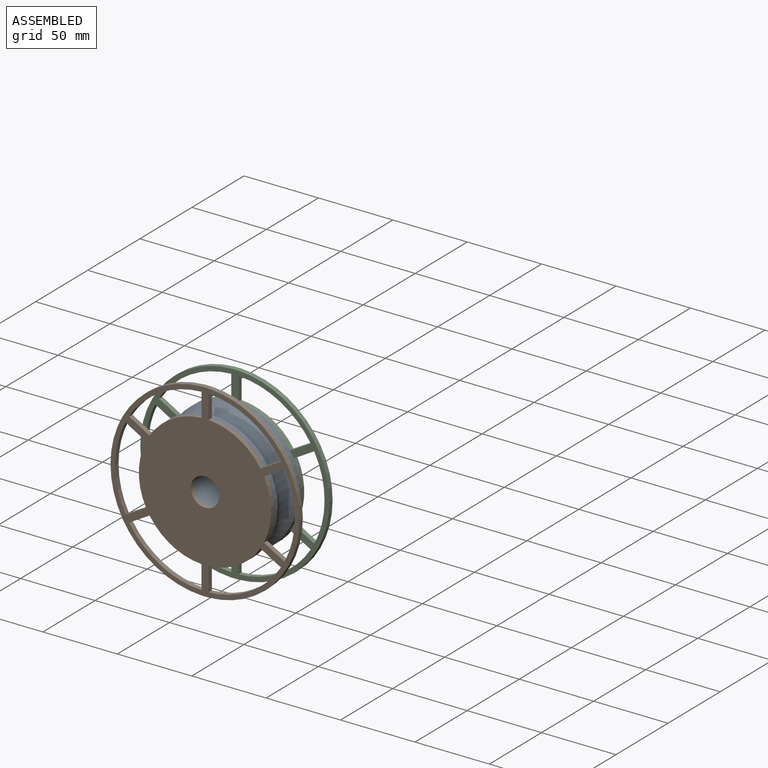
[diagram: assembled view]
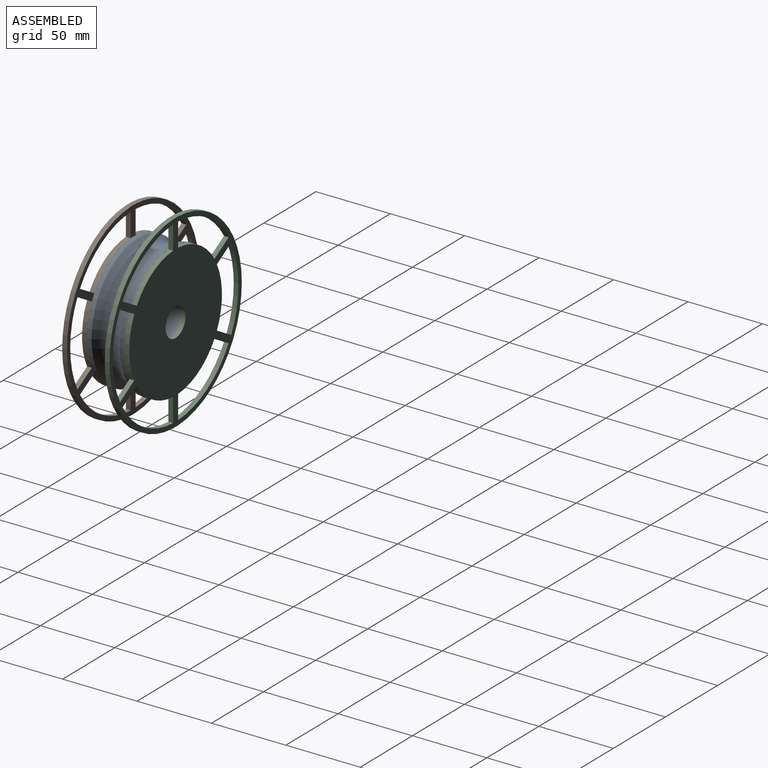
[diagram: assembled view, second angle]
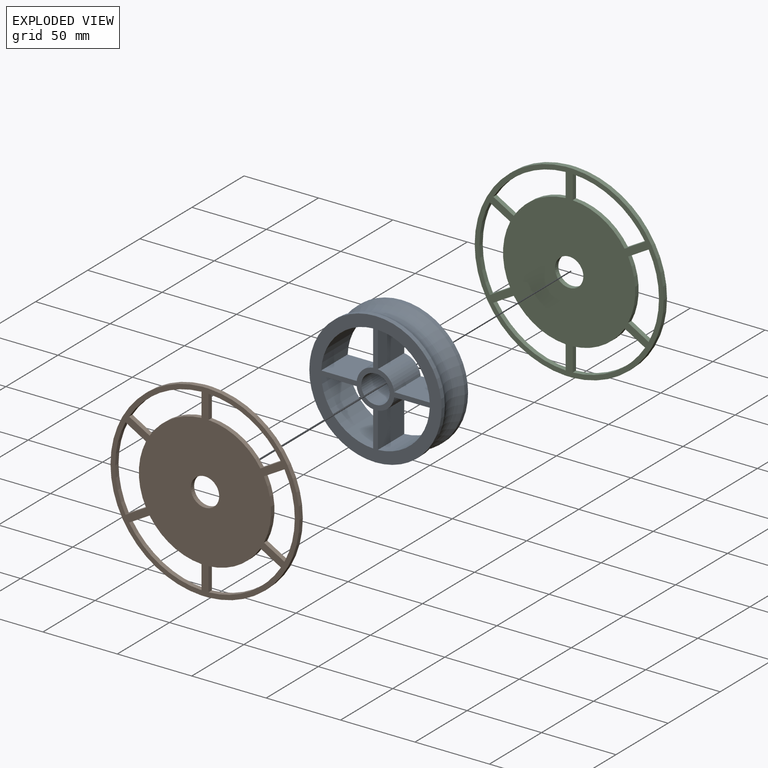
[diagram: exploded view]
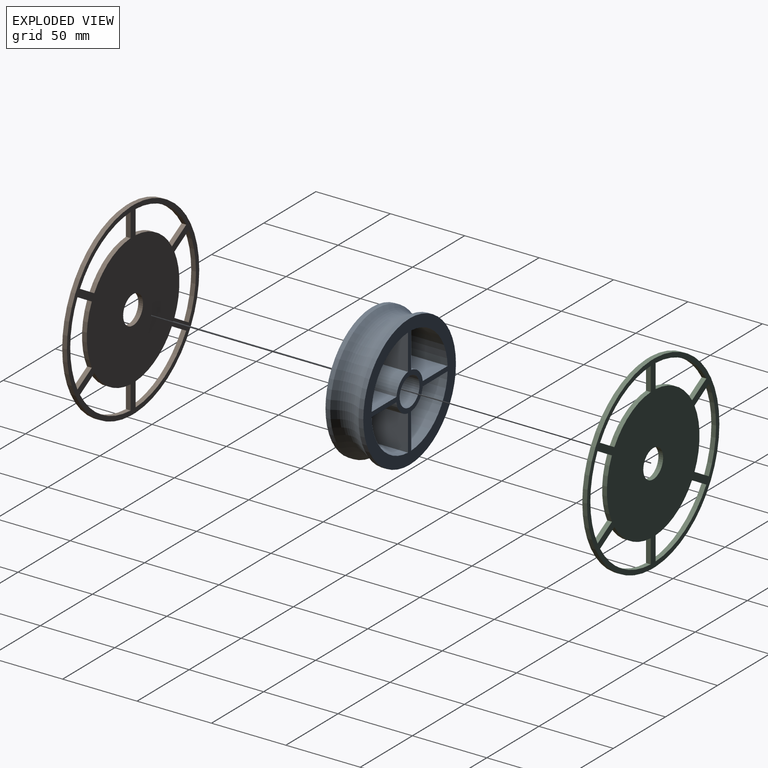
[diagram: exploded view, second angle]
ASSEMBLY  parts=3 mates=2
PART A: 24 faces, bbox 96.5x96.5x25.4 mm
  f0: plane 88.9x88.9mm, normal (0,0,1), area 2543.3mm2, adj f6,f7,f8,f9,f10,f11,f12,f13
  f1: plane 88.9x88.9mm, normal (0,0,-1), area 2543.3mm2, adj f2,f7,f8,f9,f10,f11,f12,f13
  f2: cylinder r=44.45mm len=88.9mm, axis (0,0,-1), area 886.7mm2, adj f1,f3
  f3: cone r=42.62mm half-angle=30deg, axis (0,0,-1), area 1002.8mm2, adj f2,f4
  f4: torus R=53.62mm, axis (0,0,-1), area 3466.8mm2, adj f3,f5
  f5: cone r=44.45mm half-angle=30deg, axis (0,0,1), area 1002.8mm2, adj f4,f6
  f6: cylinder r=44.45mm len=88.9mm, axis (0,0,-1), area 886.7mm2, adj f0,f5
  f7: cylinder r=36.51mm len=34.89mm, axis (0,0,1), area 1376.1mm2, adj f0,f1,f8,f10
  f8: plane 25.4x23.88mm, normal (1,0,0), area 606.5mm2, adj f0,f1,f7,f9
  f9: cylinder r=12.7mm len=25.4mm, axis (0,0,1), area 425.9mm2, adj f0,f1,f8,f10
  f10: plane 25.4x23.88mm, normal (0,1,0), area 606.5mm2, adj f0,f1,f7,f9
  f11: plane 25.4x23.88mm, normal (0,-1,0), area 606.5mm2, adj f0,f1,f12,f14
  f12: cylinder r=12.7mm len=25.4mm, axis (0,0,1), area 425.9mm2, adj f0,f1,f11,f13
  f13: plane 25.4x23.88mm, normal (1,0,0), area 606.5mm2, adj f0,f1,f12,f14
  f14: cylinder r=36.51mm len=34.89mm, axis (0,0,1), area 1376.1mm2, adj f0,f1,f11,f13
  f15: cylinder r=9.53mm len=25.4mm, axis (0,0,1), area 1520.1mm2, adj f0,f1
  f16: plane 25.4x23.88mm, normal (0,-1,0), area 606.5mm2, adj f0,f1,f17,f19
  f17: cylinder r=36.51mm len=34.89mm, axis (0,0,1), area 1376.1mm2, adj f0,f1,f16,f18
  f18: plane 25.4x23.88mm, normal (-1,0,0), area 606.5mm2, adj f0,f1,f17,f19
  f19: cylinder r=12.7mm len=25.4mm, axis (0,0,1), area 425.9mm2, adj f0,f1,f16,f18
  f20: plane 25.4x23.88mm, normal (-1,0,0), area 606.5mm2, adj f0,f1,f21,f23
  f21: cylinder r=36.51mm len=34.89mm, axis (0,0,1), area 1376.1mm2, adj f0,f1,f20,f22
  f22: plane 25.4x23.88mm, normal (0,1,0), area 606.5mm2, adj f0,f1,f21,f23
  f23: cylinder r=12.7mm len=25.4mm, axis (0,0,1), area 425.9mm2, adj f0,f1,f20,f22
PART B: 31 faces, bbox 127x126.9x3.2 mm
  f0: plane 15.89x3.18mm, normal (1,0,0), area 50.5mm2, adj f1,f21,f29,f30
  f1: cylinder r=60.32mm len=48.63mm, axis (0,0,-1), area 185.4mm2, adj f0,f2,f29,f30
  f2: plane 13.76x7.95mm, normal (-0.5,0.87,0), area 50.5mm2, adj f1,f21,f29,f30
  f3: plane 13.76x7.95mm, normal (0.5,0.87,0), area 50.5mm2, adj f4,f22,f29,f30
  f4: cylinder r=60.32mm len=48.63mm, axis (0,0,-1), area 185.4mm2, adj f3,f5,f29,f30
  f5: plane 15.89x3.18mm, normal (-1,0,0), area 50.5mm2, adj f4,f22,f29,f30
  f6: plane 13.76x7.95mm, normal (-0.5,0.87,0), area 50.5mm2, adj f7,f23,f29,f30
  f7: cylinder r=60.32mm len=56.15mm, axis (0,0,-1), area 185.4mm2, adj f6,f8,f29,f30
  f8: plane 13.76x7.95mm, normal (-0.5,-0.87,0), area 50.5mm2, adj f7,f23,f29,f30
  f9: plane 15.89x3.18mm, normal (-1,0,0), area 50.5mm2, adj f10,f24,f29,f30
  f10: cylinder r=60.32mm len=48.63mm, axis (0,0,-1), area 185.4mm2, adj f9,f11,f29,f30
  f11: plane 13.76x7.95mm, normal (0.5,-0.87,0), area 50.5mm2, adj f10,f24,f29,f30
  f12: cylinder r=60.32mm len=48.63mm, axis (0,0,-1), area 185.4mm2, adj f13,f25,f29,f30
  f13: plane 15.89x3.18mm, normal (1,0,0), area 50.5mm2, adj f12,f14,f29,f30
  f14: cylinder r=44.45mm len=34.87mm, axis (0,0,-1), area 132.7mm2, adj f13,f25,f29,f30
  f15: plane 13.76x7.95mm, normal (0.5,-0.87,0), area 50.5mm2, adj f16,f26,f29,f30
  f16: cylinder r=60.32mm len=56.15mm, axis (0,0,-1), area 185.4mm2, adj f15,f17,f29,f30
  f17: plane 13.76x7.95mm, normal (0.5,0.87,0), area 50.5mm2, adj f16,f26,f29,f30
  f18: cylinder r=63.5mm len=126.91mm, axis (0,0,-1), area 618.3mm2, adj f19,f27,f29,f30
  f19: plane 4.76x3.18mm, normal (0,1,0), area 15.1mm2, adj f18,f20,f29,f30
  f20: cylinder r=63.5mm len=126.91mm, axis (0,0,-1), area 618.3mm2, adj f19,f27,f29,f30
  f21: cylinder r=44.45mm len=34.87mm, axis (0,0,-1), area 132.7mm2, adj f0,f2,f29,f30
  f22: cylinder r=44.45mm len=34.87mm, axis (0,0,-1), area 132.7mm2, adj f3,f5,f29,f30
  f23: cylinder r=44.45mm len=40.26mm, axis (0,0,-1), area 132.7mm2, adj f6,f8,f29,f30
  f24: cylinder r=44.45mm len=34.87mm, axis (0,0,-1), area 132.7mm2, adj f9,f11,f29,f30
  f25: plane 13.76x7.95mm, normal (-0.5,-0.87,0), area 50.5mm2, adj f12,f14,f29,f30
  f26: cylinder r=44.45mm len=40.26mm, axis (0,0,-1), area 132.7mm2, adj f15,f17,f29,f30
  f27: plane 4.76x3.18mm, normal (0,-1,0), area 15.1mm2, adj f18,f20,f29,f30
  f28: cylinder r=9.53mm len=19.05mm, axis (0,0,-1), area 190mm2, adj f29,f30
  f29: plane 127x126.91mm, normal (0,0,1), area 7610.7mm2, adj f0,f1,f2,f3,f4,f5,f6,f7
  f30: plane 127x126.91mm, normal (0,0,-1), area 7610.7mm2, adj f0,f1,f2,f3,f4,f5,f6,f7
PART C: same geometry as B
PLACE A rot(axis=(0,0.71,0.71),180deg) t=(0,-12.7,0)mm
PLACE B rot(axis=(-1,0,0),90deg) t=(0,-15.88,0)mm
PLACE C rot(axis=(1,0,0),90deg) t=(0,15.87,0)mm
MATE fastened A.f19 <-> C.f28  axis (0,1,0) through (0,12.7,0)mm
MATE fastened A.f15 <-> B.f28  axis (0,-1,0) through (0,-12.7,0)mm
